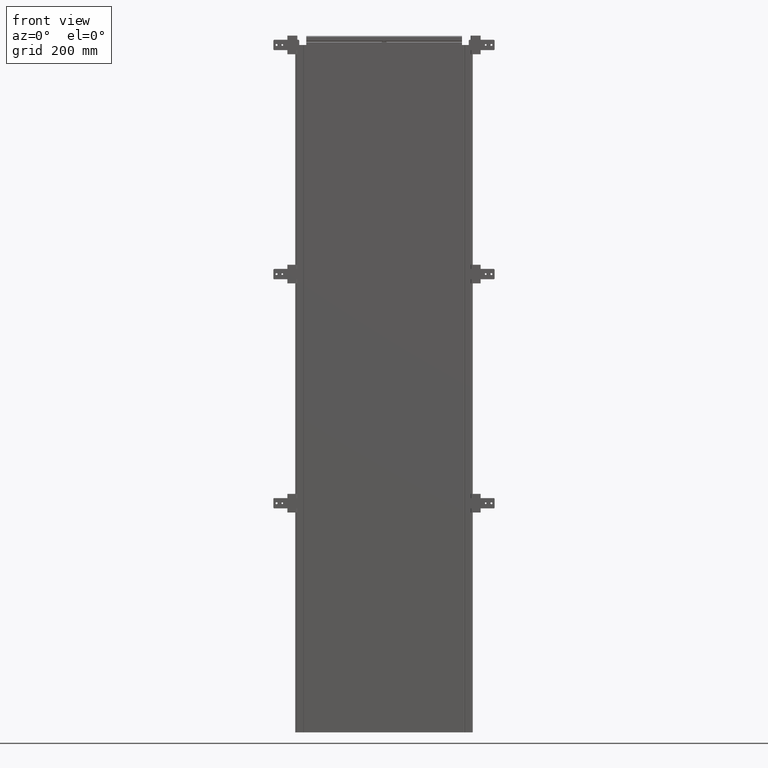
[diagram: clean part render]
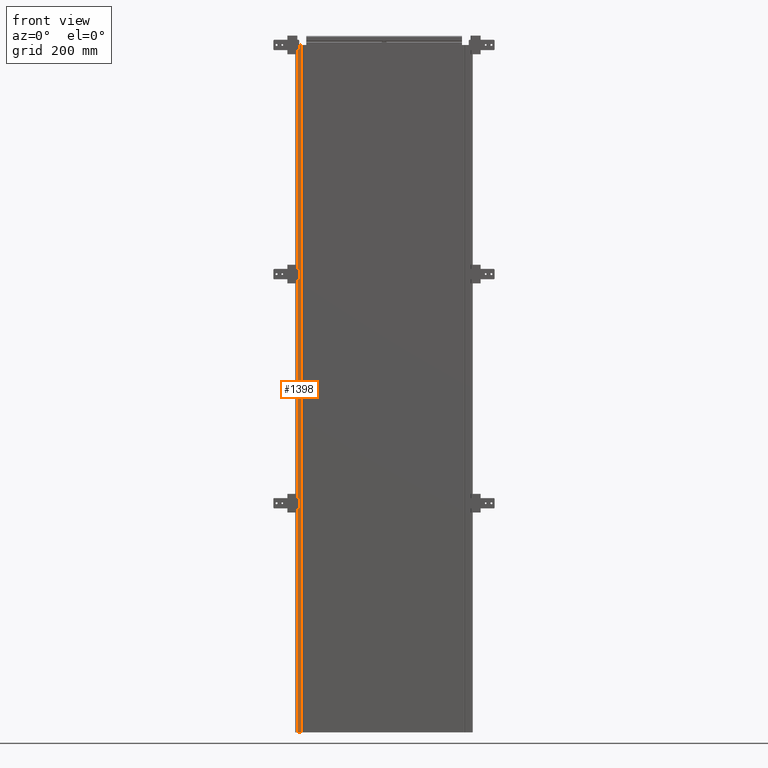
[diagram: same view with one face highlighted and labeled with its STEP entity id]
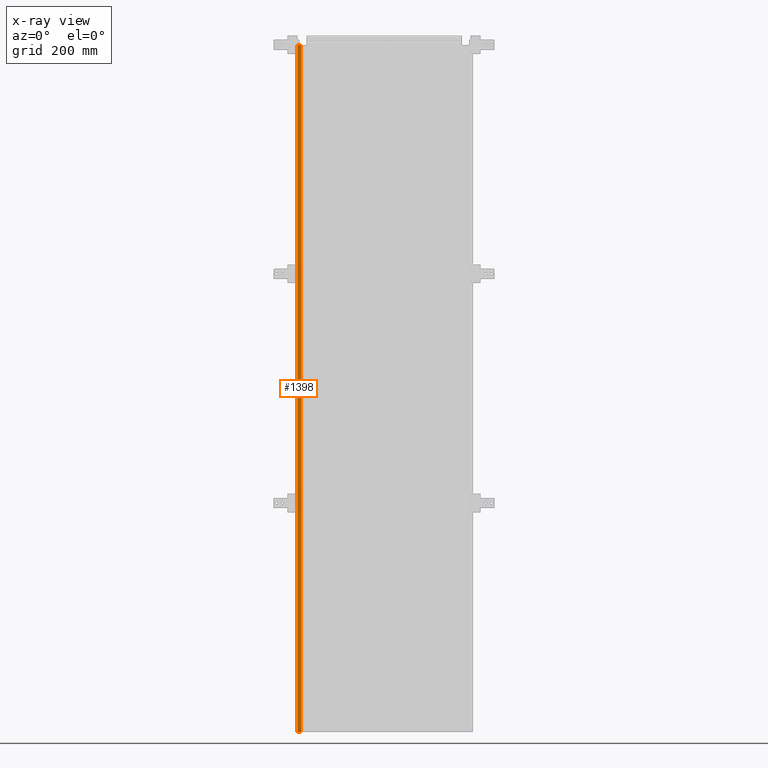
[diagram: x-ray of the same camera — body ghosted, the highlighted face saturated]
A machine part, front view. The second image highlights one B-rep face of the part: STEP entity #1398.
The next image is the same camera in x-ray: the body ghosted, the highlighted face saturated — about 0% of this face is hidden behind the body in this view.
In plain terms, the highlighted planar face has unit normal (0, -1, 0).
Its self-contained STEP definition (entity closure, byte-faithful):
#516=DIRECTION('',(-1.E0,0.E0,0.E0));
#517=VECTOR('',#516,1.31E1);
#518=CARTESIAN_POINT('',(-1.951E1,-1.2E3,-3.21E1));
#519=LINE('',#518,#517);
#520=DIRECTION('',(0.E0,-1.E0,0.E0));
#521=VECTOR('',#520,2.4E3);
#522=CARTESIAN_POINT('',(-3.261E1,1.2E3,-3.21E1));
#523=LINE('',#522,#521);
#524=DIRECTION('',(1.E0,0.E0,0.E0));
#525=VECTOR('',#524,1.31E1);
#526=CARTESIAN_POINT('',(-3.261E1,1.2E3,-3.21E1));
#527=LINE('',#526,#525);
#528=DIRECTION('',(0.E0,-1.E0,0.E0));
#529=VECTOR('',#528,2.4E3);
#530=CARTESIAN_POINT('',(-1.951E1,1.2E3,-3.21E1));
#531=LINE('',#530,#529);
#960=CARTESIAN_POINT('',(-3.261E1,1.2E3,-3.21E1));
#961=CARTESIAN_POINT('',(-3.261E1,-1.2E3,-3.21E1));
#962=VERTEX_POINT('',#960);
#963=VERTEX_POINT('',#961);
#972=CARTESIAN_POINT('',(-1.951E1,1.2E3,-3.21E1));
#973=CARTESIAN_POINT('',(-1.951E1,-1.2E3,-3.21E1));
#974=VERTEX_POINT('',#972);
#975=VERTEX_POINT('',#973);
#1386=CARTESIAN_POINT('',(-2.771E1,-1.2E3,-3.21E1));
#1387=DIRECTION('',(0.E0,0.E0,1.E0));
#1388=DIRECTION('',(1.E0,0.E0,0.E0));
#1389=AXIS2_PLACEMENT_3D('',#1386,#1387,#1388);
#1390=PLANE('',#1389);
#1391=ORIENTED_EDGE('',*,*,#1141,.T.);
#1393=ORIENTED_EDGE('',*,*,#1392,.F.);
#1394=ORIENTED_EDGE('',*,*,#1199,.T.);
#1395=ORIENTED_EDGE('',*,*,#1379,.T.);
#1396=EDGE_LOOP('',(#1391,#1393,#1394,#1395));
#1397=FACE_OUTER_BOUND('',#1396,.F.);
#1141=EDGE_CURVE('',#975,#963,#519,.T.);
#1199=EDGE_CURVE('',#962,#974,#527,.T.);
#1379=EDGE_CURVE('',#974,#975,#531,.T.);
#1392=EDGE_CURVE('',#962,#963,#523,.T.);
#1398=ADVANCED_FACE('',(#1397),#1390,.T.);